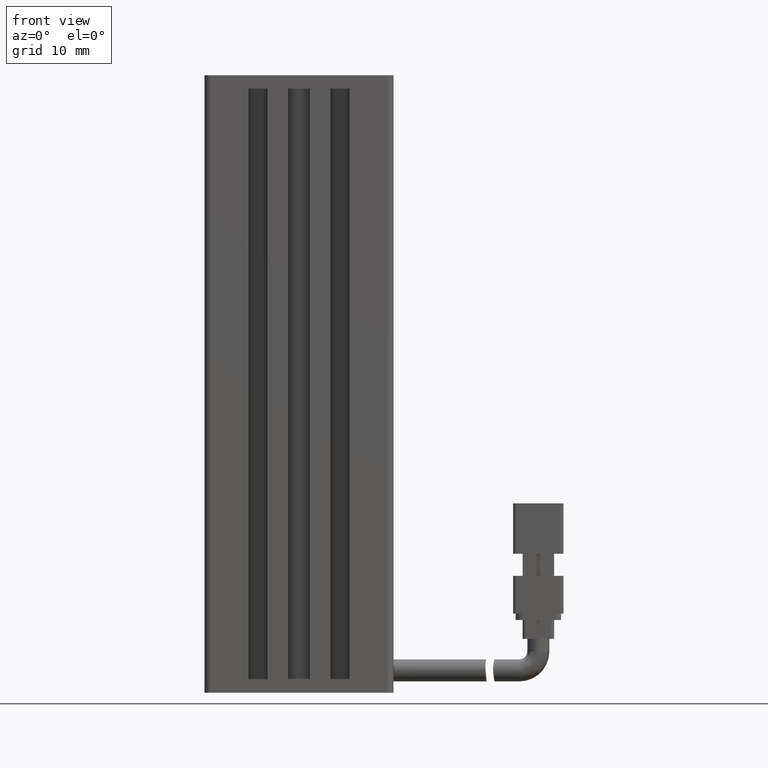
[diagram: clean part render]
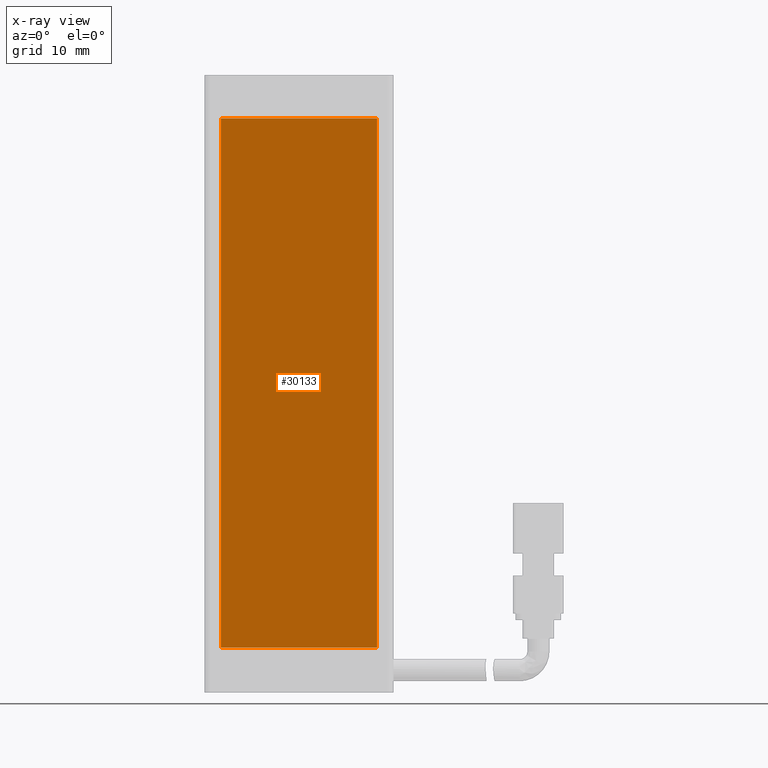
[diagram: x-ray — body ghosted, one internal face saturated and labeled with its STEP entity id]
A machine part, front view, then the same camera in x-ray: the body is ghosted and one INTERNAL B-rep face — a face not visible from any outside direction — is saturated and labeled: STEP entity #30133.
In plain terms, the highlighted planar face has unit normal (0, 1, 0).
Its self-contained STEP definition (entity closure, byte-faithful):
#1101 = DIRECTION ( 'NONE',  ( -0.0000000000000000000, 0.0000000000000000000, -1.000000000000000000 ) ) ;
#1493 = VERTEX_POINT ( 'NONE', #17355 ) ;
#3120 = VERTEX_POINT ( 'NONE', #27841 ) ;
#3623 = AXIS2_PLACEMENT_3D ( 'NONE', #29942, #15519, #1101 ) ;
#4009 = CARTESIAN_POINT ( 'NONE',  ( 28.52537974683541600, 20.19594479660386800, -156.8499999999999900 ) ) ;
#4124 = VECTOR ( 'NONE', #10171, 1000.000000000000000 ) ;
#4136 = ORIENTED_EDGE ( 'NONE', *, *, #11520, .F. ) ;
#5062 = DIRECTION ( 'NONE',  ( 1.000000000000000000, -0.0000000000000000000, -0.0000000000000000000 ) ) ;
#5378 = LINE ( 'NONE', #17050, #11048 ) ;
#10171 = DIRECTION ( 'NONE',  ( 0.0000000000000000000, -0.0000000000000000000, 1.000000000000000000 ) ) ;
#11041 = ORIENTED_EDGE ( 'NONE', *, *, #19051, .F. ) ;
#11048 = VECTOR ( 'NONE', #5062, 1000.000000000000000 ) ;
#11520 = EDGE_CURVE ( 'NONE', #1493, #24357, #5378, .T. ) ;
#12573 = CARTESIAN_POINT ( 'NONE',  ( 28.52537974683541600, 20.19594479660386800, -114.8499999999999800 ) ) ;
#12620 = DIRECTION ( 'NONE',  ( -0.0000000000000000000, 0.0000000000000000000, -1.000000000000000000 ) ) ;
#13383 = LINE ( 'NONE', #23567, #26175 ) ;
#14247 = EDGE_CURVE ( 'NONE', #15102, #1493, #29749, .T. ) ;
#15102 = VERTEX_POINT ( 'NONE', #4009 ) ;
#15156 = EDGE_CURVE ( 'NONE', #3120, #15102, #13383, .T. ) ;
#15519 = DIRECTION ( 'NONE',  ( 0.0000000000000000000, 1.000000000000000000, 0.0000000000000000000 ) ) ;
#17050 = CARTESIAN_POINT ( 'NONE',  ( 40.92537974683541800, 20.19594479660386800, -72.84999999999996600 ) ) ;
#17355 = CARTESIAN_POINT ( 'NONE',  ( 28.52537974683541600, 20.19594479660386800, -72.84999999999996600 ) ) ;
#19051 = EDGE_CURVE ( 'NONE', #24357, #3120, #31096, .T. ) ;
#20223 = PLANE ( 'NONE',  #3623 ) ;
#21135 = DIRECTION ( 'NONE',  ( -1.000000000000000000, 0.0000000000000000000, 0.0000000000000000000 ) ) ;
#23084 = CARTESIAN_POINT ( 'NONE',  ( 53.32537974683541600, 20.19594479660386800, -72.84999999999996600 ) ) ;
#23567 = CARTESIAN_POINT ( 'NONE',  ( 40.92537974683541800, 20.19594479660386800, -156.8499999999999900 ) ) ;
#23881 = ORIENTED_EDGE ( 'NONE', *, *, #15156, .F. ) ;
#24357 = VERTEX_POINT ( 'NONE', #23084 ) ;
#25464 = FACE_OUTER_BOUND ( 'NONE', #28237, .T. ) ;
#26175 = VECTOR ( 'NONE', #21135, 1000.000000000000000 ) ;
#27841 = CARTESIAN_POINT ( 'NONE',  ( 53.32537974683541600, 20.19594479660386800, -156.8499999999999900 ) ) ;
#28237 = EDGE_LOOP ( 'NONE', ( #28486, #23881, #11041, #4136 ) ) ;
#28486 = ORIENTED_EDGE ( 'NONE', *, *, #14247, .F. ) ;
#29485 = CARTESIAN_POINT ( 'NONE',  ( 53.32537974683541600, 20.19594479660386800, -114.8499999999999800 ) ) ;
#29749 = LINE ( 'NONE', #12573, #4124 ) ;
#29942 = CARTESIAN_POINT ( 'NONE',  ( 40.92537974683541800, 20.19594479660386800, -114.8499999999999800 ) ) ;
#30133 = ADVANCED_FACE ( 'NONE', ( #25464 ), #20223, .F. ) ;
#30371 = VECTOR ( 'NONE', #12620, 1000.000000000000000 ) ;
#31096 = LINE ( 'NONE', #29485, #30371 ) ;